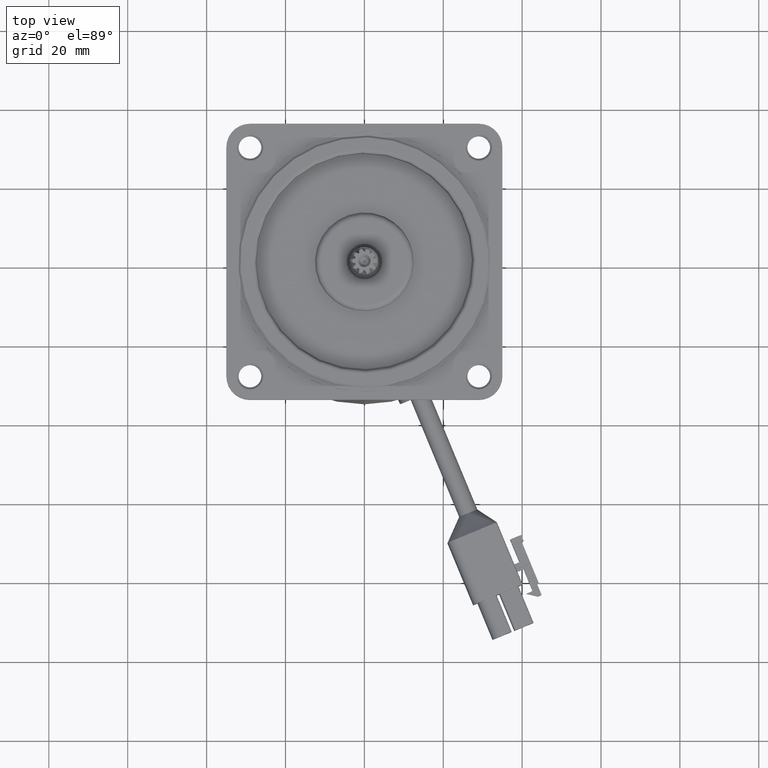
[diagram: clean part render]
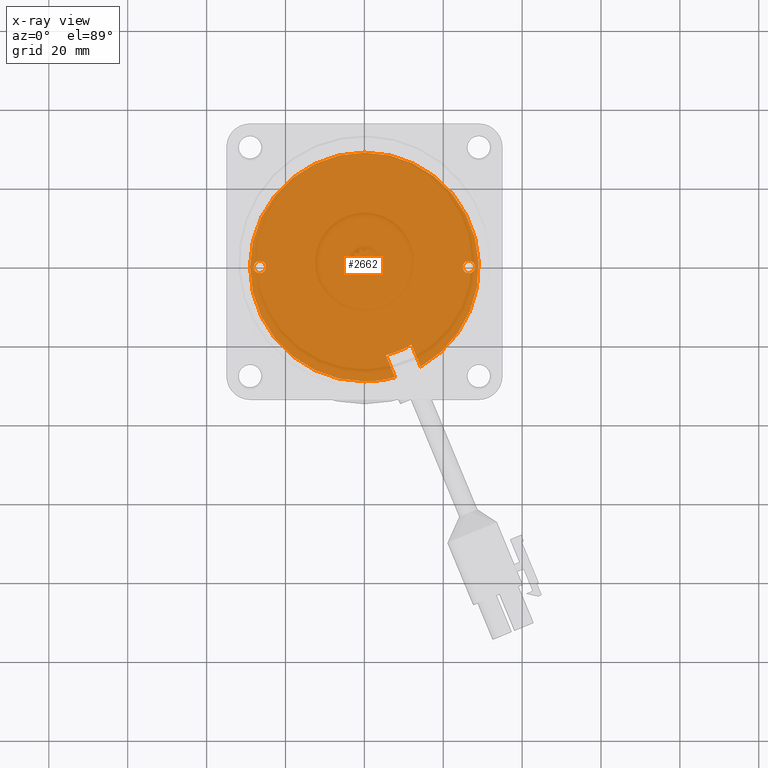
[diagram: x-ray — body ghosted, one internal face saturated and labeled with its STEP entity id]
A machine part, top view, then the same camera in x-ray: the body is ghosted and one INTERNAL B-rep face — a face not visible from any outside direction — is saturated and labeled: STEP entity #2662.
In plain terms, the highlighted planar face has unit normal (0, 0, -1).
Its self-contained STEP definition (entity closure, byte-faithful):
#2240 = VERTEX_POINT ( 'NONE', #13620 ) ;
#2241 = VERTEX_POINT ( 'NONE', #13619 ) ;
#2243 = VERTEX_POINT ( 'NONE', #13541 ) ;
#2278 = VERTEX_POINT ( 'NONE', #13647 ) ;
#2279 = EDGE_CURVE ( 'NONE', #2243, #2278, #13638, .T. ) ;
#2288 = EDGE_CURVE ( 'NONE', #2240, #2241, #13667, .T. ) ;
#2303 = VERTEX_POINT ( 'NONE', #13701 ) ;
#2304 = EDGE_CURVE ( 'NONE', #2303, #2315, #13698, .T. ) ;
#2315 = VERTEX_POINT ( 'NONE', #12935 ) ;
#2326 = EDGE_CURVE ( 'NONE', #2355, #2336, #12916, .T. ) ;
#2336 = VERTEX_POINT ( 'NONE', #12891 ) ;
#2355 = VERTEX_POINT ( 'NONE', #13735 ) ;
#2529 = EDGE_CURVE ( 'NONE', #2241, #2240, #14764, .T. ) ;
#2546 = EDGE_CURVE ( 'NONE', #2278, #2243, #14335, .T. ) ;
#2576 = EDGE_CURVE ( 'NONE', #2315, #2593, #14818, .T. ) ;
#2593 = VERTEX_POINT ( 'NONE', #14889 ) ;
#2602 = VERTEX_POINT ( 'NONE', #14866 ) ;
#2604 = EDGE_CURVE ( 'NONE', #2602, #2303, #14885, .T. ) ;
#2610 = EDGE_CURVE ( 'NONE', #2593, #2355, #14911, .T. ) ;
#2645 = EDGE_LOOP ( 'NONE', ( #2720, #2648, #2646, #2651, #2653, #2707 ) ) ;
#2646 = ORIENTED_EDGE ( 'NONE', *, *, #2659, .T. ) ;
#2648 = ORIENTED_EDGE ( 'NONE', *, *, #2326, .T. ) ;
#2651 = ORIENTED_EDGE ( 'NONE', *, *, #2604, .T. ) ;
#2653 = ORIENTED_EDGE ( 'NONE', *, *, #2304, .T. ) ;
#2659 = EDGE_CURVE ( 'NONE', #2336, #2602, #15197, .T. ) ;
#2660 = ORIENTED_EDGE ( 'NONE', *, *, #2529, .F. ) ;
#2661 = EDGE_LOOP ( 'NONE', ( #2719, #2663 ) ) ;
#2662 = ADVANCED_FACE ( 'NONE', ( #15198, #15143, #15200 ), #15193, .F. ) ;
#2663 = ORIENTED_EDGE ( 'NONE', *, *, #2279, .F. ) ;
#2672 = EDGE_LOOP ( 'NONE', ( #2660, #2677 ) ) ;
#2677 = ORIENTED_EDGE ( 'NONE', *, *, #2288, .F. ) ;
#2707 = ORIENTED_EDGE ( 'NONE', *, *, #2576, .T. ) ;
#2719 = ORIENTED_EDGE ( 'NONE', *, *, #2546, .F. ) ;
#2720 = ORIENTED_EDGE ( 'NONE', *, *, #2610, .T. ) ;
#12891 = CARTESIAN_POINT ( 'NONE',  ( 0.9294303572491889900, -11.93279013330769400, -19.66236302264899600 ) ) ;
#12906 = DIRECTION ( 'NONE',  ( 0.0000000000000000000, 0.0000000000000000000, 1.000000000000000000 ) ) ;
#12907 = DIRECTION ( 'NONE',  ( -1.000000000000000000, 0.0000000000000000000, 0.0000000000000000000 ) ) ;
#12908 = AXIS2_PLACEMENT_3D ( 'NONE', #12925, #12907, #12906 ) ;
#12916 = CIRCLE ( 'NONE', #12908, 23.00000000000000400 ) ;
#12925 = CARTESIAN_POINT ( 'NONE',  ( 0.9294303572491889900, 0.0000000000000000000, 0.0000000000000000000 ) ) ;
#12935 = CARTESIAN_POINT ( 'NONE',  ( 0.9294303572491895400, 3.551475717527324000E-015, -29.00000000000000000 ) ) ;
#13541 = CARTESIAN_POINT ( 'NONE',  ( 0.9294303572491889900, -26.50000000000000400, -1.549999999999999800 ) ) ;
#13619 = CARTESIAN_POINT ( 'NONE',  ( 0.9294303572491889900, 26.50000000000000400, 1.549999999999999800 ) ) ;
#13620 = CARTESIAN_POINT ( 'NONE',  ( 0.9294303572491889900, 26.50000000000000400, -1.549999999999999800 ) ) ;
#13638 = CIRCLE ( 'NONE', #13684, 1.549999999999999800 ) ;
#13647 = CARTESIAN_POINT ( 'NONE',  ( 0.9294303572491889900, -26.50000000000000400, 1.549999999999999800 ) ) ;
#13658 = DIRECTION ( 'NONE',  ( 0.0000000000000000000, 0.0000000000000000000, 1.000000000000000000 ) ) ;
#13659 = DIRECTION ( 'NONE',  ( -1.000000000000000000, 0.0000000000000000000, 0.0000000000000000000 ) ) ;
#13664 = AXIS2_PLACEMENT_3D ( 'NONE', #13671, #13659, #13658 ) ;
#13667 = CIRCLE ( 'NONE', #13664, 1.549999999999999800 ) ;
#13671 = CARTESIAN_POINT ( 'NONE',  ( 0.9294303572491889900, 26.50000000000000400, 0.0000000000000000000 ) ) ;
#13681 = DIRECTION ( 'NONE',  ( 0.0000000000000000000, 0.0000000000000000000, 1.000000000000000000 ) ) ;
#13682 = DIRECTION ( 'NONE',  ( -1.000000000000000000, 0.0000000000000000000, 0.0000000000000000000 ) ) ;
#13683 = CARTESIAN_POINT ( 'NONE',  ( 0.9294303572491889900, -26.50000000000000400, 0.0000000000000000000 ) ) ;
#13684 = AXIS2_PLACEMENT_3D ( 'NONE', #13683, #13682, #13681 ) ;
#13690 = DIRECTION ( 'NONE',  ( 0.0000000000000000000, 0.0000000000000000000, 1.000000000000000000 ) ) ;
#13691 = DIRECTION ( 'NONE',  ( -1.000000000000000000, -0.0000000000000000000, -0.0000000000000000000 ) ) ;
#13696 = CARTESIAN_POINT ( 'NONE',  ( 0.9294303572491895400, 0.0000000000000000000, 0.0000000000000000000 ) ) ;
#13698 = CIRCLE ( 'NONE', #13702, 29.00000000000000000 ) ;
#13701 = CARTESIAN_POINT ( 'NONE',  ( 0.9294303572491895400, 0.0000000000000000000, 29.00000000000000000 ) ) ;
#13702 = AXIS2_PLACEMENT_3D ( 'NONE', #13696, #13691, #13690 ) ;
#13735 = CARTESIAN_POINT ( 'NONE',  ( 0.9294303572491884300, -5.465633405728677700, -22.34114704920458600 ) ) ;
#14335 = CIRCLE ( 'NONE', #14388, 1.549999999999999800 ) ;
#14385 = DIRECTION ( 'NONE',  ( 0.0000000000000000000, 0.0000000000000000000, 1.000000000000000000 ) ) ;
#14386 = DIRECTION ( 'NONE',  ( -1.000000000000000000, 0.0000000000000000000, 0.0000000000000000000 ) ) ;
#14387 = CARTESIAN_POINT ( 'NONE',  ( 0.9294303572491889900, -26.50000000000000400, 0.0000000000000000000 ) ) ;
#14388 = AXIS2_PLACEMENT_3D ( 'NONE', #14387, #14386, #14385 ) ;
#14749 = DIRECTION ( 'NONE',  ( 0.0000000000000000000, 0.0000000000000000000, 1.000000000000000000 ) ) ;
#14750 = DIRECTION ( 'NONE',  ( -1.000000000000000000, 0.0000000000000000000, 0.0000000000000000000 ) ) ;
#14751 = CARTESIAN_POINT ( 'NONE',  ( 0.9294303572491889900, 26.50000000000000400, 0.0000000000000000000 ) ) ;
#14752 = AXIS2_PLACEMENT_3D ( 'NONE', #14751, #14750, #14749 ) ;
#14764 = CIRCLE ( 'NONE', #14752, 1.549999999999999800 ) ;
#14818 = CIRCLE ( 'NONE', #14844, 29.00000000000000000 ) ;
#14841 = DIRECTION ( 'NONE',  ( 0.0000000000000000000, 0.0000000000000000000, 1.000000000000000000 ) ) ;
#14842 = DIRECTION ( 'NONE',  ( -1.000000000000000000, -0.0000000000000000000, -0.0000000000000000000 ) ) ;
#14843 = CARTESIAN_POINT ( 'NONE',  ( 0.9294303572491895400, 0.0000000000000000000, 0.0000000000000000000 ) ) ;
#14844 = AXIS2_PLACEMENT_3D ( 'NONE', #14843, #14842, #14841 ) ;
#14866 = CARTESIAN_POINT ( 'NONE',  ( 0.9294303572491895400, -14.25027603350073200, -25.25726891350359400 ) ) ;
#14885 = CIRCLE ( 'NONE', #14917, 29.00000000000000000 ) ;
#14889 = CARTESIAN_POINT ( 'NONE',  ( 0.9294303572491895400, -7.783119305921721900, -27.93605294005917700 ) ) ;
#14890 = CARTESIAN_POINT ( 'NONE',  ( 0.9294303572491895400, 0.0000000000000000000, 0.0000000000000000000 ) ) ;
#14897 = DIRECTION ( 'NONE',  ( -0.0000000000000000000, 0.3826834323650839000, 0.9238795325112891800 ) ) ;
#14898 = VECTOR ( 'NONE', #14897, 1000.000000000000100 ) ;
#14906 = DIRECTION ( 'NONE',  ( 0.0000000000000000000, 0.0000000000000000000, 1.000000000000000000 ) ) ;
#14907 = DIRECTION ( 'NONE',  ( -1.000000000000000000, -0.0000000000000000000, -0.0000000000000000000 ) ) ;
#14910 = CARTESIAN_POINT ( 'NONE',  ( 0.9294303572491889900, 6.601850380144100000, 6.792335970367404700 ) ) ;
#14911 = LINE ( 'NONE', #14910, #14898 ) ;
#14917 = AXIS2_PLACEMENT_3D ( 'NONE', #14890, #14907, #14906 ) ;
#15143 = FACE_BOUND ( 'NONE', #2661, .T. ) ;
#15186 = DIRECTION ( 'NONE',  ( 0.0000000000000000000, 0.0000000000000000000, -1.000000000000000000 ) ) ;
#15187 = DIRECTION ( 'NONE',  ( 1.000000000000000000, 0.0000000000000000000, 0.0000000000000000000 ) ) ;
#15188 = CARTESIAN_POINT ( 'NONE',  ( 0.9294303572491889900, 23.00000000000000000, 0.0000000000000000000 ) ) ;
#15189 = AXIS2_PLACEMENT_3D ( 'NONE', #15188, #15187, #15186 ) ;
#15193 = PLANE ( 'NONE',  #15189 ) ;
#15194 = DIRECTION ( 'NONE',  ( 0.0000000000000000000, -0.3826834323650842900, -0.9238795325112890700 ) ) ;
#15195 = VECTOR ( 'NONE', #15194, 1000.000000000000100 ) ;
#15196 = CARTESIAN_POINT ( 'NONE',  ( 0.9294303572491889900, -14.29008356219017100, -25.35337278915019600 ) ) ;
#15197 = LINE ( 'NONE', #15196, #15195 ) ;
#15198 = FACE_BOUND ( 'NONE', #2672, .T. ) ;
#15200 = FACE_OUTER_BOUND ( 'NONE', #2645, .T. ) ;